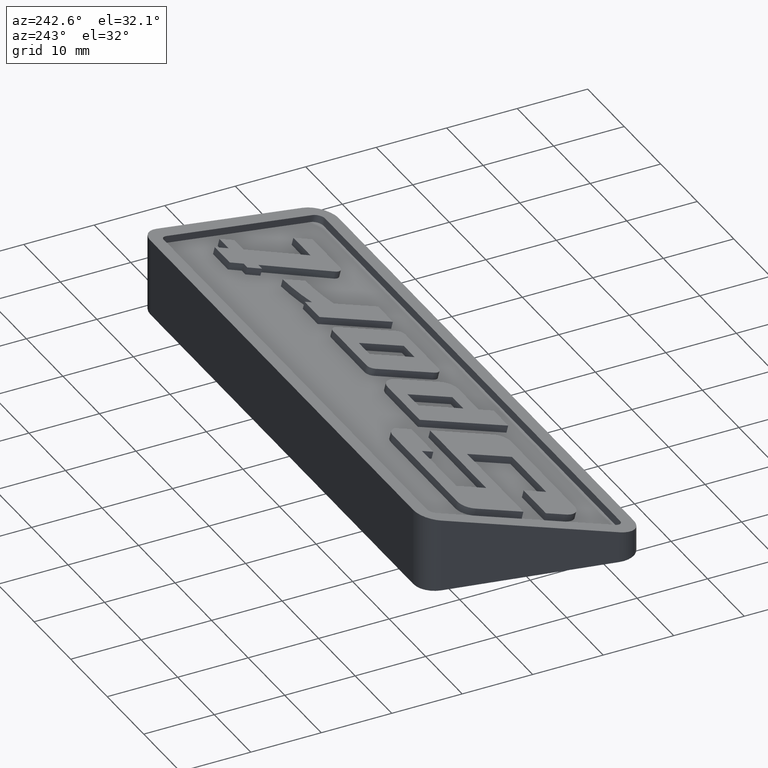
[diagram: clean part render]
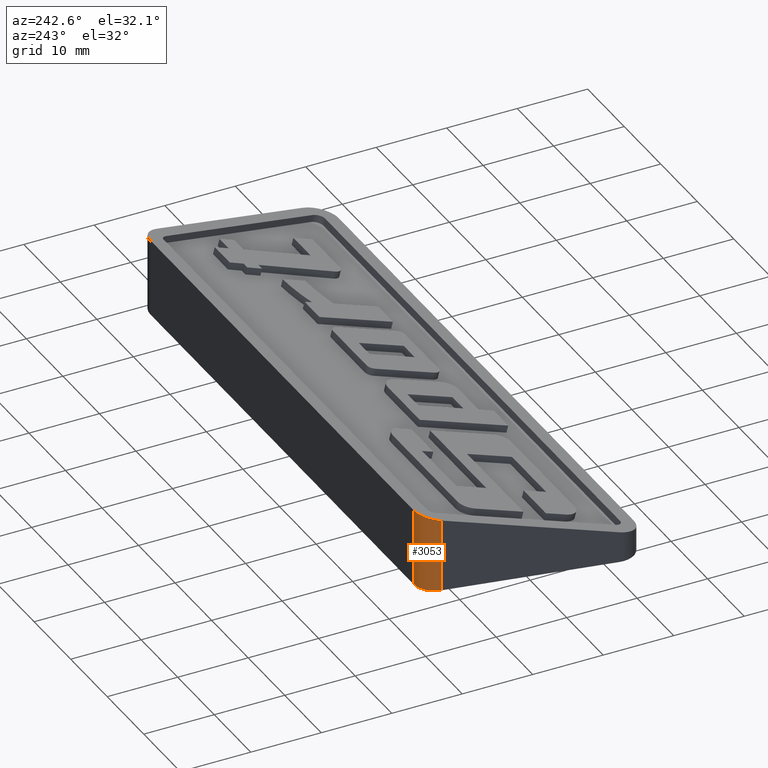
[diagram: same view with one face highlighted and labeled with its STEP entity id]
A machine part, auxiliary view. The second image highlights one B-rep face of the part: STEP entity #3053.
In plain terms, the highlighted cylindrical surface (edge-blend (fillet) strip) has radius 3 mm, axis along (0, 0, 1).
Its self-contained STEP definition (entity closure, byte-faithful):
#2937=CARTESIAN_POINT('',(-36.015488522107837,14.500000000000002,11.0));
#2938=VERTEX_POINT('',#2937);
#2945=CARTESIAN_POINT('',(-38.962948095028707,12.059000953484995,10.368707143142670));
#2946=VERTEX_POINT('',#2945);
#2947=CARTESIAN_POINT('',(-36.015488522107837,11.499999999999996,10.224137931034482));
#2948=DIRECTION('',(0.0,0.250382821968518,-0.968146911611601));
#2949=DIRECTION('',(0.0,0.968146911611601,0.250382821968518));
#2950=AXIS2_PLACEMENT_3D('',#2947,#2948,#2949);
#2951=ELLIPSE('',#2950,3.098703269120727,3.000000000000005);
#2952=EDGE_CURVE('',#2946,#2938,#2951,.T.);
#3011=CARTESIAN_POINT('',(-38.962948095028707,12.059000953484995,0.0));
#3012=VERTEX_POINT('',#3011);
#3013=CARTESIAN_POINT('',(-38.962948095028707,12.059000953484995,0.0));
#3014=DIRECTION('',(0.0,0.0,1.0));
#3015=VECTOR('',#3014,10.368707143142670);
#3016=LINE('',#3013,#3015);
#3017=EDGE_CURVE('',#3012,#2946,#3016,.T.);
#3029=CARTESIAN_POINT('',(-36.015488522107837,11.499999999999996,0.0));
#3030=DIRECTION('',(0.0,0.0,1.0));
#3031=DIRECTION('',(0.0,1.0,0.0));
#3032=AXIS2_PLACEMENT_3D('',#3029,#3030,#3031);
#3033=CYLINDRICAL_SURFACE('',#3032,3.000000000000004);
#3034=ORIENTED_EDGE('',*,*,#2952,.T.);
#3035=CARTESIAN_POINT('',(-36.015488522107837,14.500000000000002,0.0));
#3036=VERTEX_POINT('',#3035);
#3037=CARTESIAN_POINT('',(-36.015488522107837,14.500000000000002,0.0));
#3038=DIRECTION('',(0.0,0.0,1.0));
#3039=VECTOR('',#3038,11.0);
#3040=LINE('',#3037,#3039);
#3041=EDGE_CURVE('',#3036,#2938,#3040,.T.);
#3042=ORIENTED_EDGE('',*,*,#3041,.F.);
#3043=CARTESIAN_POINT('',(-36.015488522107837,11.499999999999996,0.0));
#3044=DIRECTION('',(0.0,0.0,1.0));
#3045=DIRECTION('',(0.0,1.0,0.0));
#3046=AXIS2_PLACEMENT_3D('',#3043,#3044,#3045);
#3047=CIRCLE('',#3046,3.000000000000004);
#3048=EDGE_CURVE('',#3036,#3012,#3047,.T.);
#3049=ORIENTED_EDGE('',*,*,#3048,.T.);
#3050=ORIENTED_EDGE('',*,*,#3017,.T.);
#3051=EDGE_LOOP('',(#3034,#3042,#3049,#3050));
#3052=FACE_OUTER_BOUND('',#3051,.T.);
#3053=ADVANCED_FACE('',(#3052),#3033,.T.);